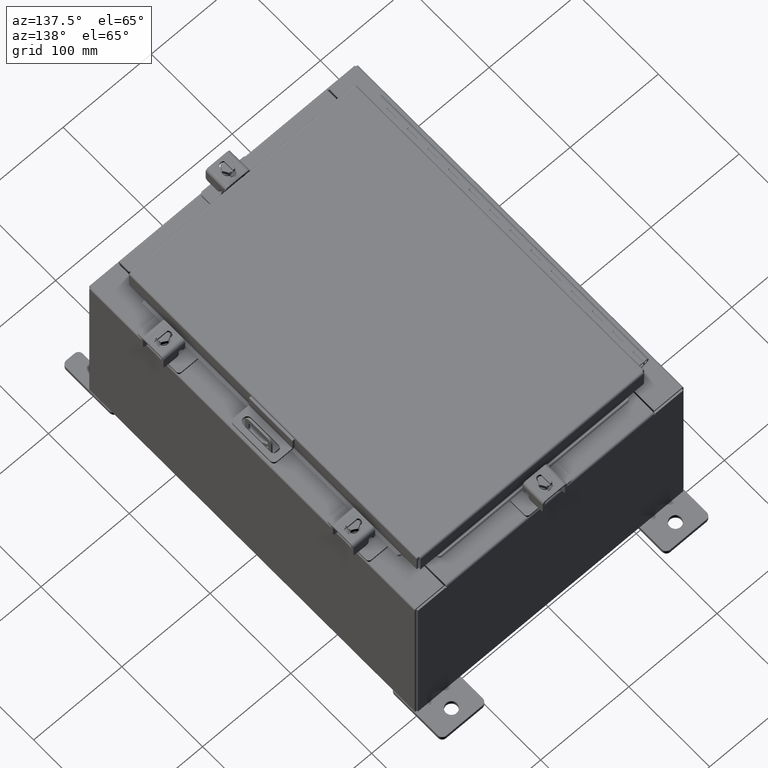
[diagram: clean part render]
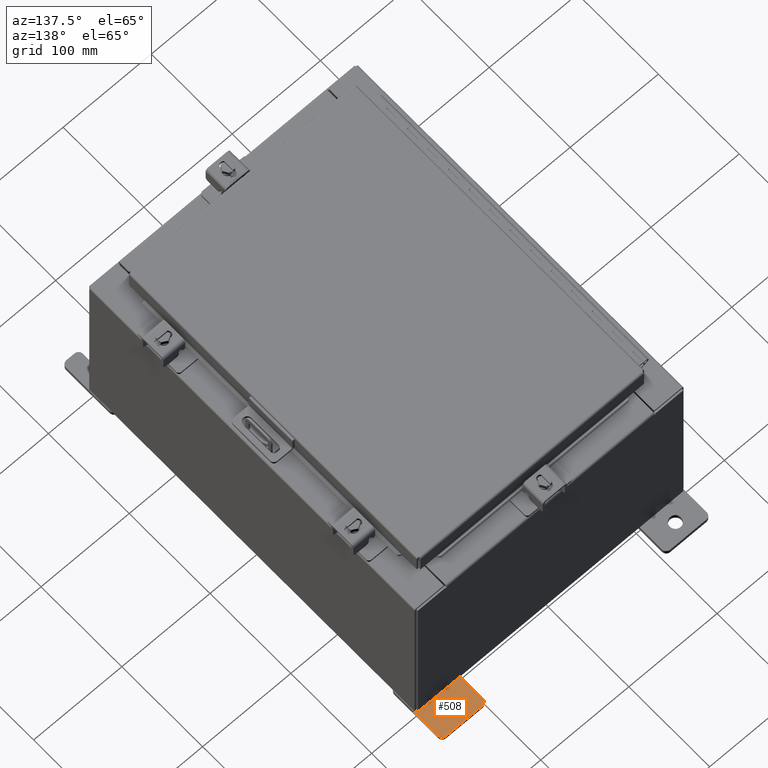
[diagram: same view with one face highlighted and labeled with its STEP entity id]
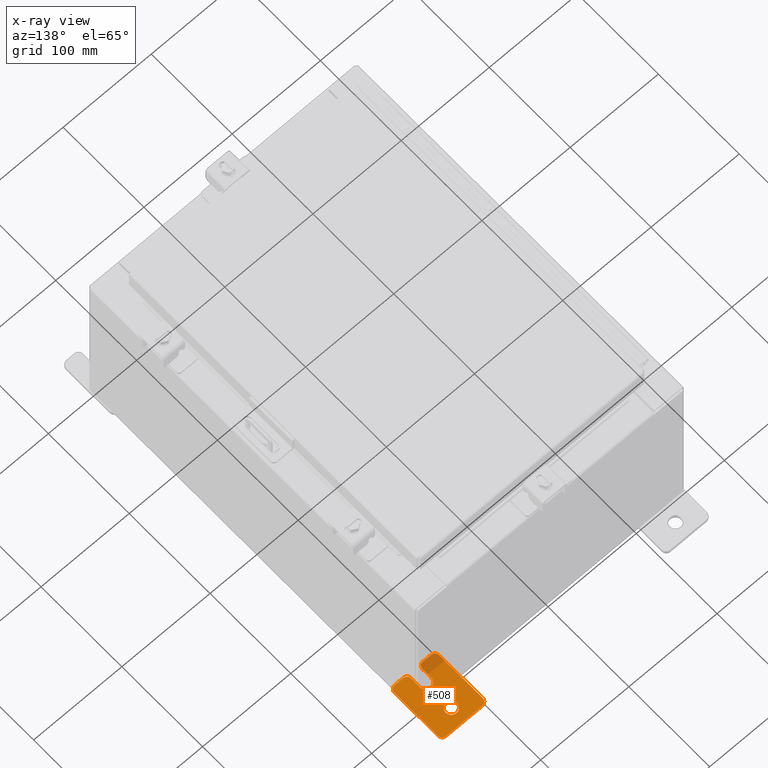
[diagram: x-ray of the same camera — body ghosted, the highlighted face saturated]
A machine part, auxiliary view. The second image highlights one B-rep face of the part: STEP entity #508.
The next image is the same camera in x-ray: the body ghosted, the highlighted face saturated — about 7% of this face is hidden behind the body in this view.
In plain terms, the highlighted planar face has unit normal (0, 0, 1).
Its self-contained STEP definition (entity closure, byte-faithful):
#255 = ORIENTED_EDGE ( 'NONE', *, *, #13932, .T. ) ;
#508 = ADVANCED_FACE ( 'NONE', ( #23493, #14220 ), #14524, .T. ) ;
#569 = EDGE_LOOP ( 'NONE', ( #21053, #6164 ) ) ;
#904 = VECTOR ( 'NONE', #6197, 39.37007874015748100 ) ;
#936 = EDGE_CURVE ( 'NONE', #2951, #14428, #12632, .T. ) ;
#1070 = VERTEX_POINT ( 'NONE', #19294 ) ;
#1196 = CARTESIAN_POINT ( 'NONE',  ( 0.0000000000000000000, -1.060000000000003400, -0.4400000000000005000 ) ) ;
#1248 = ORIENTED_EDGE ( 'NONE', *, *, #4334, .T. ) ;
#1531 = ORIENTED_EDGE ( 'NONE', *, *, #13026, .T. ) ;
#1723 = CARTESIAN_POINT ( 'NONE',  ( 1.928684683526972300E-016, -1.060000000000002100, 0.2500000000000005000 ) ) ;
#1868 = CARTESIAN_POINT ( 'NONE',  ( 1.928684683526964400E-016, -1.060000000000003400, -0.2499999999999994400 ) ) ;
#2069 = AXIS2_PLACEMENT_3D ( 'NONE', #19174, #7130, #21180 ) ;
#2284 = VECTOR ( 'NONE', #4000, 39.37007874015748100 ) ;
#2361 = CIRCLE ( 'NONE', #2069, 0.1900000000000011100 ) ;
#2628 = CARTESIAN_POINT ( 'NONE',  ( 0.0000000000000000000, 0.0000000000000000000, 0.0000000000000000000 ) ) ;
#2872 = DIRECTION ( 'NONE',  ( 0.0000000000000000000, -1.000000000000000000, 1.639108796198558100E-015 ) ) ;
#2908 = LINE ( 'NONE', #22519, #2284 ) ;
#2951 = VERTEX_POINT ( 'NONE', #18314 ) ;
#3046 = VERTEX_POINT ( 'NONE', #12740 ) ;
#3177 = DIRECTION ( 'NONE',  ( 1.000000000000000000, 0.0000000000000000000, -0.0000000000000000000 ) ) ;
#3278 = DIRECTION ( 'NONE',  ( 0.0000000000000000000, 0.0000000000000000000, -1.000000000000000000 ) ) ;
#3344 = VERTEX_POINT ( 'NONE', #14441 ) ;
#4000 = DIRECTION ( 'NONE',  ( 0.0000000000000000000, 1.639108796198553600E-015, 1.000000000000000000 ) ) ;
#4190 = DIRECTION ( 'NONE',  ( 1.000000000000000000, 0.0000000000000000000, -0.0000000000000000000 ) ) ;
#4239 = DIRECTION ( 'NONE',  ( 1.000000000000000000, 0.0000000000000000000, -0.0000000000000000000 ) ) ;
#4334 = EDGE_CURVE ( 'NONE', #1070, #3046, #21527, .T. ) ;
#4521 = VERTEX_POINT ( 'NONE', #15595 ) ;
#4898 = VERTEX_POINT ( 'NONE', #15064 ) ;
#5432 = CARTESIAN_POINT ( 'NONE',  ( 0.0000000000000000000, 1.249999999999994700, -0.8100000000000092700 ) ) ;
#6004 = EDGE_LOOP ( 'NONE', ( #6504, #255, #1531, #16291, #24030, #6864, #23931, #13874, #1248, #25827, #15370, #17674, #23262, #15972 ) ) ;
#6164 = ORIENTED_EDGE ( 'NONE', *, *, #21009, .F. ) ;
#6186 = CIRCLE ( 'NONE', #20998, 0.1900000000000011400 ) ;
#6195 = CARTESIAN_POINT ( 'NONE',  ( 4.780733988912460100E-016, -0.6249999999999993300, 5.858939755051854500E-017 ) ) ;
#6197 = DIRECTION ( 'NONE',  ( 0.0000000000000000000, 1.000000000000000000, -1.639108796198558100E-015 ) ) ;
#6353 = CARTESIAN_POINT ( 'NONE',  ( 0.0000000000000000000, -1.250000000000005600, -1.000000000000006200 ) ) ;
#6504 = ORIENTED_EDGE ( 'NONE', *, *, #7071, .T. ) ;
#6526 = DIRECTION ( 'NONE',  ( 1.000000000000000000, 0.0000000000000000000, -0.0000000000000000000 ) ) ;
#6581 = CARTESIAN_POINT ( 'NONE',  ( 0.0000000000000000000, -1.060000000000001600, 0.8099999999999978300 ) ) ;
#6689 = CARTESIAN_POINT ( 'NONE',  ( 0.0000000000000000000, -1.250000000000002200, 0.9999999999999992200 ) ) ;
#6864 = ORIENTED_EDGE ( 'NONE', *, *, #23005, .T. ) ;
#6945 = DIRECTION ( 'NONE',  ( 0.0000000000000000000, 0.0000000000000000000, -1.000000000000000000 ) ) ;
#7071 = EDGE_CURVE ( 'NONE', #23325, #8682, #22886, .T. ) ;
#7130 = DIRECTION ( 'NONE',  ( 1.000000000000000000, 0.0000000000000000000, -0.0000000000000000000 ) ) ;
#7371 = VERTEX_POINT ( 'NONE', #11554 ) ;
#7858 = VECTOR ( 'NONE', #10019, 39.37007874015748100 ) ;
#8231 = DIRECTION ( 'NONE',  ( -6.523827964459551700E-016, -1.000000000000000000, 0.0000000000000000000 ) ) ;
#8520 = DIRECTION ( 'NONE',  ( 0.0000000000000000000, -1.639108796198553600E-015, -1.000000000000000000 ) ) ;
#8682 = VERTEX_POINT ( 'NONE', #21958 ) ;
#8727 = CIRCLE ( 'NONE', #11125, 0.1900000000000011100 ) ;
#8880 = CARTESIAN_POINT ( 'NONE',  ( 0.0000000000000000000, 1.249999999999997600, 0.9999999999999951200 ) ) ;
#9237 = EDGE_CURVE ( 'NONE', #17617, #3344, #2908, .T. ) ;
#9397 = VERTEX_POINT ( 'NONE', #18772 ) ;
#9673 = DIRECTION ( 'NONE',  ( 1.000000000000000000, -0.0000000000000000000, -5.163192708025532000E-017 ) ) ;
#9712 = AXIS2_PLACEMENT_3D ( 'NONE', #16391, #4190, #18322 ) ;
#10019 = DIRECTION ( 'NONE',  ( -6.556435184794182400E-016, -1.000000000000000000, -1.639108796198545600E-016 ) ) ;
#10070 = AXIS2_PLACEMENT_3D ( 'NONE', #2628, #4239, #23015 ) ;
#10180 = CARTESIAN_POINT ( 'NONE',  ( 0.0000000000000000000, -1.060000000000002100, 0.4400000000000016700 ) ) ;
#10219 = CIRCLE ( 'NONE', #23388, 0.1900000000000011100 ) ;
#10703 = DIRECTION ( 'NONE',  ( 0.0000000000000000000, -1.639108796198553600E-015, -1.000000000000000000 ) ) ;
#11125 = AXIS2_PLACEMENT_3D ( 'NONE', #15383, #3177, #17366 ) ;
#11453 = EDGE_CURVE ( 'NONE', #11947, #4521, #17151, .T. ) ;
#11554 = CARTESIAN_POINT ( 'NONE',  ( 4.168508244714285900E-016, 0.6249999999999992200, 0.2499999999999999200 ) ) ;
#11555 = VECTOR ( 'NONE', #8520, 39.37007874015748100 ) ;
#11947 = VERTEX_POINT ( 'NONE', #15240 ) ;
#12049 = CIRCLE ( 'NONE', #9712, 0.1900000000000011100 ) ;
#12155 = CARTESIAN_POINT ( 'NONE',  ( 4.039428427013647300E-016, 0.6249999999999992200, -9.783840404509077400E-018 ) ) ;
#12197 = DIRECTION ( 'NONE',  ( 0.0000000000000000000, 0.0000000000000000000, -1.000000000000000000 ) ) ;
#12368 = CARTESIAN_POINT ( 'NONE',  ( 6.829619984160658000E-017, -1.250000000000003800, 0.2500000000000005000 ) ) ;
#12443 = CIRCLE ( 'NONE', #19599, 0.2499999999999999200 ) ;
#12632 = LINE ( 'NONE', #16373, #7858 ) ;
#12740 = CARTESIAN_POINT ( 'NONE',  ( 0.0000000000000000000, -1.250000000000005300, -0.8100000000000047200 ) ) ;
#12761 = AXIS2_PLACEMENT_3D ( 'NONE', #12155, #26042, #14195 ) ;
#12858 = CARTESIAN_POINT ( 'NONE',  ( 0.0000000000000000000, 1.059999999999996500, 0.9999999999999953400 ) ) ;
#13005 = VERTEX_POINT ( 'NONE', #19625 ) ;
#13026 = EDGE_CURVE ( 'NONE', #4898, #19046, #14576, .T. ) ;
#13062 = CIRCLE ( 'NONE', #25863, 0.1900000000000011100 ) ;
#13874 = ORIENTED_EDGE ( 'NONE', *, *, #20193, .T. ) ;
#13932 = EDGE_CURVE ( 'NONE', #8682, #4898, #10219, .T. ) ;
#14195 = DIRECTION ( 'NONE',  ( -5.163192708025533800E-017, 0.0000000000000000000, -1.000000000000000000 ) ) ;
#14220 = FACE_OUTER_BOUND ( 'NONE', #6004, .T. ) ;
#14428 = VERTEX_POINT ( 'NONE', #1868 ) ;
#14441 = CARTESIAN_POINT ( 'NONE',  ( 0.0000000000000000000, 1.249999999999997300, 0.8099999999999935000 ) ) ;
#14524 = PLANE ( 'NONE',  #10070 ) ;
#14529 = CIRCLE ( 'NONE', #12761, 0.2499999999999999200 ) ;
#14567 = CARTESIAN_POINT ( 'NONE',  ( 0.0000000000000000000, -1.250000000000003100, 0.4400000000000020000 ) ) ;
#14576 = LINE ( 'NONE', #15585, #20471 ) ;
#15064 = CARTESIAN_POINT ( 'NONE',  ( 0.0000000000000000000, -1.250000000000002400, 0.8099999999999980500 ) ) ;
#15240 = CARTESIAN_POINT ( 'NONE',  ( 0.0000000000000000000, -1.060000000000004500, -1.000000000000006400 ) ) ;
#15370 = ORIENTED_EDGE ( 'NONE', *, *, #11453, .T. ) ;
#15383 = CARTESIAN_POINT ( 'NONE',  ( 0.0000000000000000000, 1.059999999999996300, 0.8099999999999938400 ) ) ;
#15384 = EDGE_CURVE ( 'NONE', #16546, #13005, #16168, .T. ) ;
#15467 = DIRECTION ( 'NONE',  ( 1.000000000000000000, 0.0000000000000000000, -0.0000000000000000000 ) ) ;
#15488 = AXIS2_PLACEMENT_3D ( 'NONE', #6195, #20288, #8231 ) ;
#15585 = CARTESIAN_POINT ( 'NONE',  ( 0.0000000000000000000, -1.250000000000002200, 0.9999999999999992200 ) ) ;
#15595 = CARTESIAN_POINT ( 'NONE',  ( 0.0000000000000000000, 1.059999999999993400, -1.000000000000010000 ) ) ;
#15972 = ORIENTED_EDGE ( 'NONE', *, *, #18383, .T. ) ;
#16168 = LINE ( 'NONE', #12368, #16787 ) ;
#16291 = ORIENTED_EDGE ( 'NONE', *, *, #17870, .T. ) ;
#16373 = CARTESIAN_POINT ( 'NONE',  ( 4.780733988912460100E-016, -0.6249999999999993300, -0.2499999999999993900 ) ) ;
#16391 = CARTESIAN_POINT ( 'NONE',  ( 0.0000000000000000000, 1.059999999999993600, -0.8100000000000089400 ) ) ;
#16546 = VERTEX_POINT ( 'NONE', #1723 ) ;
#16787 = VECTOR ( 'NONE', #20029, 39.37007874015748100 ) ;
#17151 = LINE ( 'NONE', #6353, #904 ) ;
#17366 = DIRECTION ( 'NONE',  ( 0.0000000000000000000, 0.0000000000000000000, -1.000000000000000000 ) ) ;
#17456 = EDGE_CURVE ( 'NONE', #3046, #11947, #2361, .T. ) ;
#17617 = VERTEX_POINT ( 'NONE', #5432 ) ;
#17674 = ORIENTED_EDGE ( 'NONE', *, *, #21313, .T. ) ;
#17870 = EDGE_CURVE ( 'NONE', #19046, #16546, #6186, .T. ) ;
#18314 = CARTESIAN_POINT ( 'NONE',  ( 4.780733988912460100E-016, -0.6249999999999993300, -0.2499999999999998600 ) ) ;
#18322 = DIRECTION ( 'NONE',  ( 0.0000000000000000000, 0.0000000000000000000, -1.000000000000000000 ) ) ;
#18383 = EDGE_CURVE ( 'NONE', #3344, #23325, #8727, .T. ) ;
#18522 = CIRCLE ( 'NONE', #15488, 0.2499999999999999200 ) ;
#18772 = CARTESIAN_POINT ( 'NONE',  ( 3.910348609313009100E-016, 0.6249999999999992200, -0.2499999999999999200 ) ) ;
#19046 = VERTEX_POINT ( 'NONE', #14567 ) ;
#19174 = CARTESIAN_POINT ( 'NONE',  ( 0.0000000000000000000, -1.060000000000004100, -0.8100000000000050500 ) ) ;
#19294 = CARTESIAN_POINT ( 'NONE',  ( 0.0000000000000000000, -1.250000000000004700, -0.4400000000000002200 ) ) ;
#19599 = AXIS2_PLACEMENT_3D ( 'NONE', #21636, #9673, #23606 ) ;
#19625 = CARTESIAN_POINT ( 'NONE',  ( 0.0000000000000000000, -0.6249999999999992200, 0.2500000000000005000 ) ) ;
#20029 = DIRECTION ( 'NONE',  ( 6.556435184794182400E-016, 1.000000000000000000, 0.0000000000000000000 ) ) ;
#20193 = EDGE_CURVE ( 'NONE', #14428, #1070, #13062, .T. ) ;
#20288 = DIRECTION ( 'NONE',  ( -1.000000000000000000, 6.523827964459549700E-016, 5.163192708025532000E-017 ) ) ;
#20471 = VECTOR ( 'NONE', #10703, 39.37007874015748100 ) ;
#20998 = AXIS2_PLACEMENT_3D ( 'NONE', #10180, #24096, #12197 ) ;
#21009 = EDGE_CURVE ( 'NONE', #7371, #9397, #12443, .T. ) ;
#21053 = ORIENTED_EDGE ( 'NONE', *, *, #22943, .F. ) ;
#21180 = DIRECTION ( 'NONE',  ( 0.0000000000000000000, 0.0000000000000000000, -1.000000000000000000 ) ) ;
#21313 = EDGE_CURVE ( 'NONE', #4521, #17617, #12049, .T. ) ;
#21527 = LINE ( 'NONE', #6689, #11555 ) ;
#21636 = CARTESIAN_POINT ( 'NONE',  ( 4.039428427013647300E-016, 0.6249999999999992200, -9.783840404509077400E-018 ) ) ;
#21958 = CARTESIAN_POINT ( 'NONE',  ( 0.0000000000000000000, -1.060000000000001200, 0.9999999999999988900 ) ) ;
#22273 = VECTOR ( 'NONE', #2872, 39.37007874015748100 ) ;
#22519 = CARTESIAN_POINT ( 'NONE',  ( 0.0000000000000000000, 1.249999999999994200, -1.000000000000010400 ) ) ;
#22886 = LINE ( 'NONE', #8880, #22273 ) ;
#22943 = EDGE_CURVE ( 'NONE', #9397, #7371, #14529, .T. ) ;
#23005 = EDGE_CURVE ( 'NONE', #13005, #2951, #18522, .T. ) ;
#23015 = DIRECTION ( 'NONE',  ( -0.0000000000000000000, 0.0000000000000000000, -1.000000000000000000 ) ) ;
#23262 = ORIENTED_EDGE ( 'NONE', *, *, #9237, .T. ) ;
#23325 = VERTEX_POINT ( 'NONE', #12858 ) ;
#23388 = AXIS2_PLACEMENT_3D ( 'NONE', #6581, #6526, #6945 ) ;
#23493 = FACE_BOUND ( 'NONE', #569, .T. ) ;
#23606 = DIRECTION ( 'NONE',  ( -5.163192708025533800E-017, 0.0000000000000000000, -1.000000000000000000 ) ) ;
#23931 = ORIENTED_EDGE ( 'NONE', *, *, #936, .T. ) ;
#24030 = ORIENTED_EDGE ( 'NONE', *, *, #15384, .T. ) ;
#24096 = DIRECTION ( 'NONE',  ( 1.000000000000000000, 0.0000000000000000000, -0.0000000000000000000 ) ) ;
#25827 = ORIENTED_EDGE ( 'NONE', *, *, #17456, .T. ) ;
#25863 = AXIS2_PLACEMENT_3D ( 'NONE', #1196, #15467, #3278 ) ;
#26042 = DIRECTION ( 'NONE',  ( 1.000000000000000000, -0.0000000000000000000, -5.163192708025532000E-017 ) ) ;